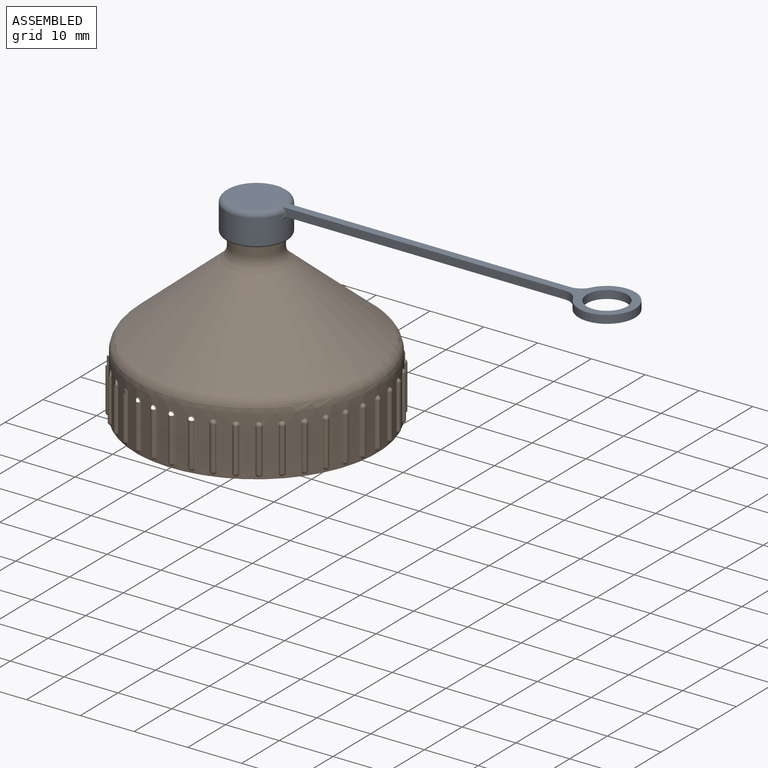
[diagram: assembled view]
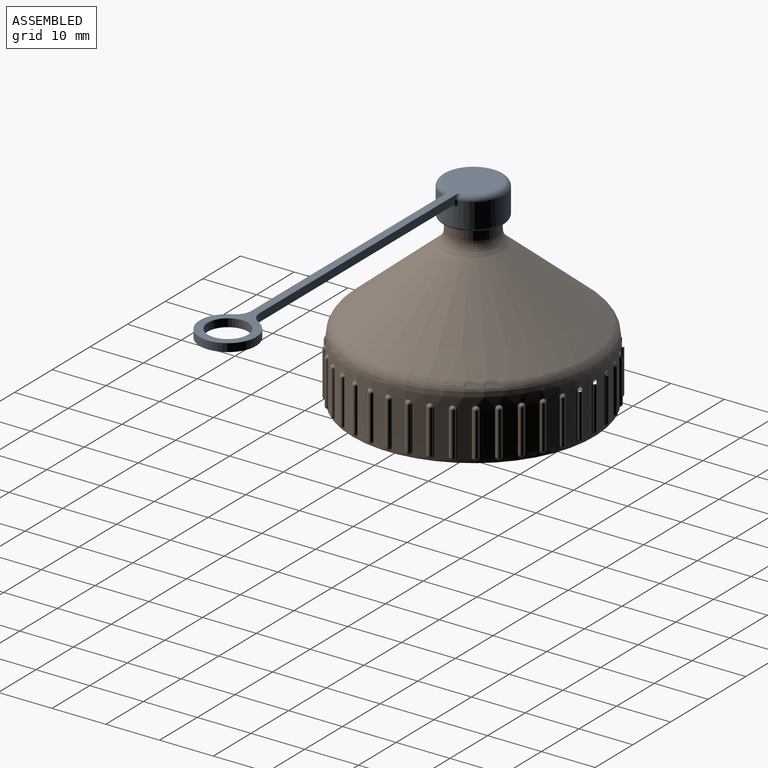
[diagram: assembled view, second angle]
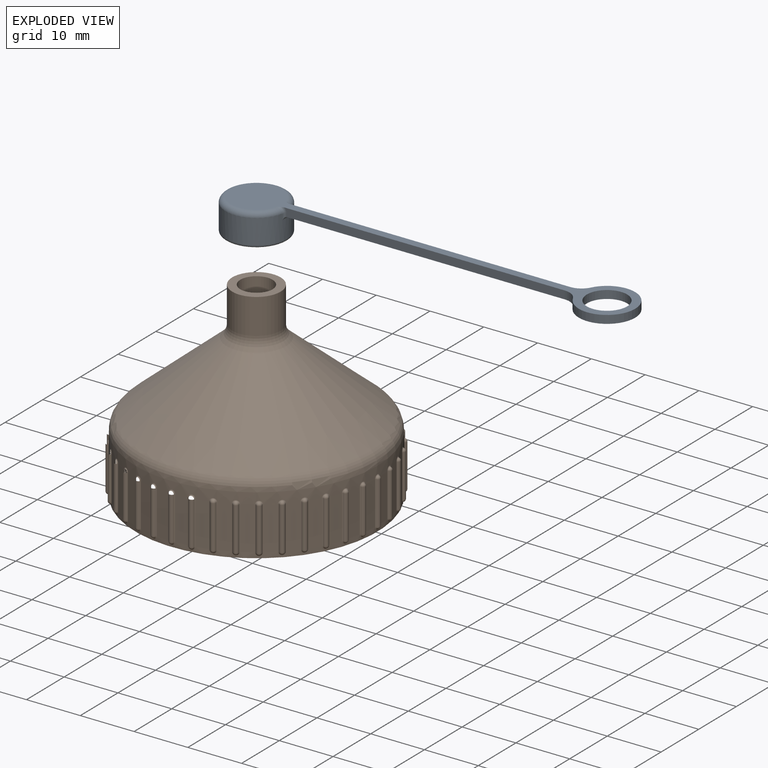
[diagram: exploded view]
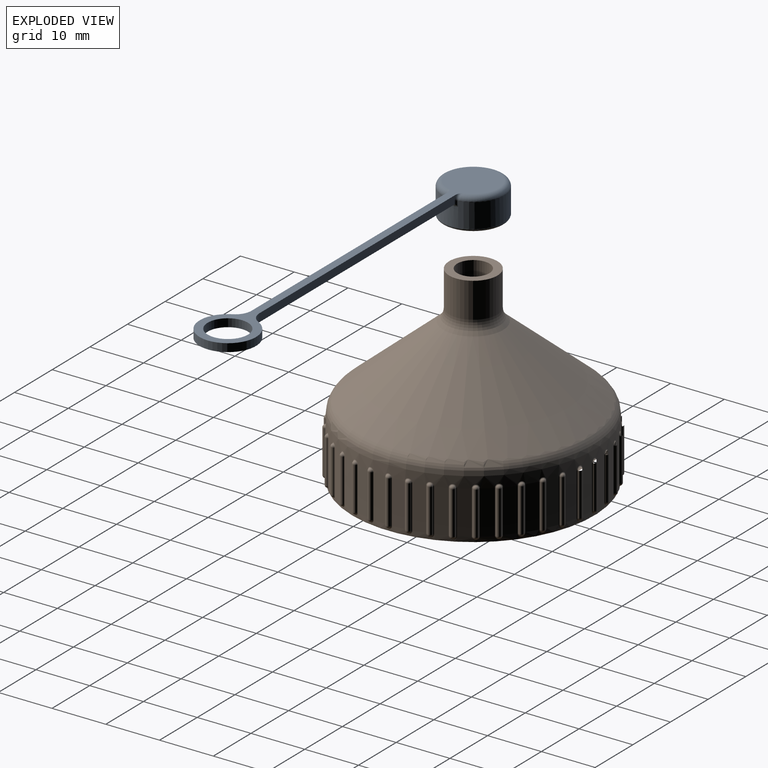
[diagram: exploded view, second angle]
ASSEMBLY  parts=2 mates=2
PART A: 19 faces, bbox 76.9x12.6x6.7 mm
  f0: cylinder r=5.75mm len=11.5mm, axis (0,0,-1), area 160.3mm2, adj f2,f5,f10,f11,f13
  f1: plane 75.38x10.68mm, normal (0,0,1), area 198mm2, adj f2,f7,f8,f9,f12,f15,f16,f17
  f2: torus R=4.75mm, axis (0,0,1), area 49.2mm2, adj f0,f1,f9,f12
  f3: cylinder r=4.75mm len=9.5mm, axis (0,0,-1), area 119.4mm2, adj f5,f14
  f4: plane 8.5x8.5mm, normal (0,0,-1), area 56.7mm2, adj f14
  f5: torus R=5.25mm, axis (0,0,1), area 51.8mm2, adj f0,f3
  f6: plane 64.24x10.5mm, normal (0,0,-1), area 124.5mm2, adj f7,f8,f11,f15,f16,f17,f18
  f7: plane 52.12x1.51mm, normal (0,1,0), area 77.7mm2, adj f1,f6,f11,f12,f13,f18
  f8: plane 52.12x1.51mm, normal (0,-1,0), area 77.7mm2, adj f1,f6,f9,f10,f11,f17
  f9: bspline ~1.77x1.7mm, area 1mm2, adj f1,f2,f8,f10
  f10: cylinder r=0.5mm len=1mm, axis (0,0,-1), area 0.5mm2, adj f0,f8,f9,f11
  f11: torus R=6.25mm, axis (0,0,1), area 1.4mm2, adj f0,f6,f7,f8,f10,f13
  f12: bspline ~1.77x1.7mm, area 1mm2, adj f1,f2,f7,f13
  f13: cylinder r=0.5mm len=1mm, axis (0,0,-1), area 0.5mm2, adj f0,f7,f11,f12
  f14: torus R=4.25mm, axis (0,0,1), area 22.5mm2, adj f3,f4
  f15: cylinder r=3.75mm len=7.5mm, axis (0,0,1), area 35.3mm2, adj f1,f6
  f16: cylinder r=5.25mm len=10.5mm, axis (0,0,1), area 42mm2, adj f1,f6,f17,f18
  f17: cylinder r=3mm len=2.67mm, axis (0,0,1), area 4.9mm2, adj f1,f6,f8,f16
  f18: cylinder r=3mm len=2.67mm, axis (0,0,1), area 4.9mm2, adj f1,f6,f7,f16
PART B: 310 faces, bbox 48.7x49.7x35.7 mm
  f0: cylinder r=22.5mm len=45mm, axis (0,0,-1), area 1081.1mm2, adj f1,f13,f33,f34,f35,f36,f40,f41
  f1: plane 45x45mm, normal (0,0,-1), area 138.2mm2, adj f0,f2,f15,f20
  f2: cylinder r=21.5mm len=43mm, axis (0,0,-1), area 255.6mm2, adj f1,f3,f15,f18,f20,f25
  f3: cylinder r=21.5mm len=43mm, axis (0,0,-1), area 297.3mm2, adj f2,f4,f15,f16,f25
  f4: cylinder r=21.5mm len=43mm, axis (0,0,-1), area 524.8mm2, adj f3,f5,f15,f16,f17,f26,f29
  f5: cone r=21.5mm half-angle=80deg, axis (0,0,-1), area 257.8mm2, adj f4,f6
  f6: cone r=19.53mm half-angle=10deg, axis (0,0,-1), area 189.6mm2, adj f5,f7
  f7: cone r=19.26mm half-angle=50deg, axis (0,0,-1), area 1484.4mm2, adj f6,f8
  f8: cylinder r=3mm len=8mm, axis (0,0,-1), area 150.8mm2, adj f7,f9
  f9: plane 9x9mm, normal (0,0,1), area 35.3mm2, adj f8,f10
  f10: cylinder r=4.5mm len=9mm, axis (0,0,-1), area 185.3mm2, adj f9,f12
  f11: cone r=22.5mm half-angle=50deg, axis (0,0,-1), area 1755.8mm2, adj f12,f13
  f12: torus R=7.5mm, axis (0,0,-1), area 80.1mm2, adj f10,f11
  f13: torus R=19.5mm, axis (0,0,1), area 364.1mm2, adj f0,f11
  f14: plane 0.19x0.19mm, normal (0.5,0.87,0), area 0mm2, adj f18,f21,f24
  f15: bspline ~49.65x43mm, area 582.6mm2, adj f1,f2,f3,f4,f19,f20,f21,f23
  f16: bspline ~49.65x43mm, area 366.7mm2, adj f3,f4,f19,f24,f25,f29
  f17: cylinder r=1.3mm len=1.27mm, axis (0,0,-1), area 0.8mm2, adj f4,f26,f29
  f18: cylinder r=1.3mm len=1.17mm, axis (0,0,-1), area 1mm2, adj f2,f14,f20,f25
  f19: bspline ~40.78x40.78mm, area 149.2mm2, adj f15,f16,f23,f27
  f20: bspline ~1.92x1.43mm, area 0.6mm2, adj f1,f2,f15,f18,f21
  f21: bspline ~1.63x1.51mm, area 0.3mm2, adj f14,f15,f20,f22
  f22: bspline ~0.67x0.54mm, area 0.1mm2, adj f21,f23,f24
  f23: bspline ~0.53x0.39mm, area 0.1mm2, adj f15,f19,f22,f24
  f24: bspline ~1.53x1.11mm, area 0.3mm2, adj f14,f16,f22,f23,f25
  f25: bspline ~1.9x1.22mm, area 0.6mm2, adj f2,f3,f16,f18,f24
  f26: bspline ~2.06x1.84mm, area 0.8mm2, adj f4,f15,f17,f28
  f27: bspline ~0.49x0.36mm, area 0mm2, adj f15,f19,f28,f29
  f28: bspline ~0.8x0.5mm, area 0.1mm2, adj f26,f27,f29
  f29: bspline ~1.92x1.67mm, area 0.9mm2, adj f4,f16,f17,f27,f28
  f30: sphere r=0.5mm, area 3.1mm2, adj f31,f33
  f31: cylinder r=0.5mm len=8mm, axis (0,0,1), area 10.4mm2, adj f30,f32,f34,f35
  f32: sphere r=0.5mm, area 0mm2, adj f31,f36
  f33: bspline ~1.34x0.67mm, area 0.4mm2, adj f0,f30,f34,f35
  f34: cylinder r=0.2mm len=8mm, axis (0,0,-1), area 2mm2, adj f0,f31,f33,f36
  f35: cylinder r=0.2mm len=8mm, axis (0,0,-1), area 2mm2, adj f0,f31,f33,f36
  f36: bspline ~1.34x0.81mm, area 0.4mm2, adj f0,f32,f34,f35
  f37: sphere r=0.5mm, area 3.1mm2, adj f38,f40
  f38: cylinder r=0.5mm len=8mm, axis (0,0,1), area 10.4mm2, adj f37,f39,f41,f42
  f39: sphere r=0.5mm, area 0mm2, adj f38,f43
  f40: bspline ~1.32x0.67mm, area 0.3mm2, adj f0,f37,f41,f42
  f41: cylinder r=0.2mm len=8mm, axis (0,0,-1), area 2mm2, adj f0,f38,f40,f43
  f42: cylinder r=0.2mm len=8mm, axis (0,0,-1), area 2mm2, adj f0,f38,f40,f43
  f43: bspline ~1.32x0.81mm, area 0.4mm2, adj f0,f39,f41,f42
  f44: sphere r=0.5mm, area 3.1mm2, adj f45,f47
  f45: cylinder r=0.5mm len=8mm, axis (0,0,1), area 10.4mm2, adj f44,f46,f48,f49
  f46: sphere r=0.5mm, area 0mm2, adj f45,f50
  f47: bspline ~1.27x0.67mm, area 0.3mm2, adj f0,f44,f48,f49
  f48: cylinder r=0.2mm len=8mm, axis (0,0,-1), area 2mm2, adj f0,f45,f47,f50
  f49: cylinder r=0.2mm len=8mm, axis (0,0,-1), area 2mm2, adj f0,f45,f47,f50
  f50: bspline ~1.27x0.81mm, area 0.4mm2, adj f0,f46,f48,f49
  f51: sphere r=0.5mm, area 3.1mm2, adj f52,f54
  f52: cylinder r=0.5mm len=8mm, axis (0,0,1), area 10.4mm2, adj f51,f53,f55,f56
  f53: sphere r=0.5mm, area 0mm2, adj f52,f57
  f54: bspline ~1.19x0.67mm, area 0.3mm2, adj f0,f51,f55,f56
  f55: cylinder r=0.2mm len=8mm, axis (0,0,-1), area 2mm2, adj f0,f52,f54,f57
  f56: cylinder r=0.2mm len=8mm, axis (0,0,-1), area 2mm2, adj f0,f52,f54,f57
  f57: bspline ~1.19x0.81mm, area 0.4mm2, adj f0,f53,f55,f56
  f58: sphere r=0.5mm, area 3.1mm2, adj f59,f61
  f59: cylinder r=0.5mm len=8mm, axis (0,0,1), area 10.4mm2, adj f58,f60,f62,f63
  f60: sphere r=0.5mm, area 0mm2, adj f59,f64
  f61: bspline ~1.08x0.79mm, area 0.3mm2, adj f0,f58,f62,f63
  f62: cylinder r=0.2mm len=8mm, axis (0,0,-1), area 2mm2, adj f0,f59,f61,f64
  f63: cylinder r=0.2mm len=8mm, axis (0,0,-1), area 2mm2, adj f0,f59,f61,f64
  f64: bspline ~1.08x0.81mm, area 0.4mm2, adj f0,f60,f62,f63
  f65: sphere r=0.5mm, area 3.1mm2, adj f66,f68
  f66: cylinder r=0.5mm len=8mm, axis (0,0,1), area 10.4mm2, adj f65,f67,f69,f70
  f67: sphere r=0.5mm, area 0mm2, adj f66,f71
  f68: bspline ~0.94x0.94mm, area 0.3mm2, adj f0,f65,f69,f70
  f69: cylinder r=0.2mm len=8mm, axis (0,0,-1), area 2mm2, adj f0,f66,f68,f71
  f70: cylinder r=0.2mm len=8mm, axis (0,0,-1), area 2mm2, adj f0,f66,f68,f71
  f71: bspline ~0.95x0.95mm, area 0.4mm2, adj f0,f67,f69,f70
  f72: sphere r=0.5mm, area 3.1mm2, adj f73,f75
  f73: cylinder r=0.5mm len=8mm, axis (0,0,1), area 10.4mm2, adj f72,f74,f76,f77
  f74: sphere r=0.5mm, area 0mm2, adj f73,f78
  f75: bspline ~1.08x0.79mm, area 0.3mm2, adj f0,f72,f76,f77
  f76: cylinder r=0.2mm len=8mm, axis (0,0,-1), area 2mm2, adj f0,f73,f75,f78
  f77: cylinder r=0.2mm len=8mm, axis (0,0,-1), area 2mm2, adj f0,f73,f75,f78
  f78: bspline ~1.08x0.81mm, area 0.4mm2, adj f0,f74,f76,f77
  f79: sphere r=0.5mm, area 3.1mm2, adj f80,f82
  f80: cylinder r=0.5mm len=8mm, axis (0,0,1), area 10.4mm2, adj f79,f81,f83,f84
  f81: sphere r=0.5mm, area 0mm2, adj f80,f85
  f82: bspline ~1.19x0.67mm, area 0.3mm2, adj f0,f79,f83,f84
  f83: cylinder r=0.2mm len=8mm, axis (0,0,-1), area 2mm2, adj f0,f80,f82,f85
  f84: cylinder r=0.2mm len=8mm, axis (0,0,-1), area 2mm2, adj f0,f80,f82,f85
  f85: bspline ~1.19x0.81mm, area 0.4mm2, adj f0,f81,f83,f84
  f86: sphere r=0.5mm, area 3.1mm2, adj f87,f89
  f87: cylinder r=0.5mm len=8mm, axis (0,0,1), area 10.4mm2, adj f86,f88,f90,f91
  f88: sphere r=0.5mm, area 0mm2, adj f87,f92
  f89: bspline ~1.27x0.67mm, area 0.3mm2, adj f0,f86,f90,f91
  f90: cylinder r=0.2mm len=8mm, axis (0,0,-1), area 2mm2, adj f0,f87,f89,f92
  f91: cylinder r=0.2mm len=8mm, axis (0,0,-1), area 2mm2, adj f0,f87,f89,f92
  f92: bspline ~1.27x0.81mm, area 0.4mm2, adj f0,f88,f90,f91
  f93: sphere r=0.5mm, area 3.1mm2, adj f94,f96
  f94: cylinder r=0.5mm len=8mm, axis (0,0,1), area 10.4mm2, adj f93,f95,f97,f98
  f95: sphere r=0.5mm, area 0mm2, adj f94,f99
  f96: bspline ~1.32x0.67mm, area 0.3mm2, adj f0,f93,f97,f98
  f97: cylinder r=0.2mm len=8mm, axis (0,0,-1), area 2mm2, adj f0,f94,f96,f99
  f98: cylinder r=0.2mm len=8mm, axis (0,0,-1), area 2mm2, adj f0,f94,f96,f99
  f99: bspline ~1.32x0.81mm, area 0.4mm2, adj f0,f95,f97,f98
  f100: sphere r=0.5mm, area 3.1mm2, adj f101,f103
  f101: cylinder r=0.5mm len=8mm, axis (0,0,1), area 10.4mm2, adj f100,f102,f104,f105
  f102: sphere r=0.5mm, area 0mm2, adj f101,f106
  f103: bspline ~1.34x0.67mm, area 0.3mm2, adj f0,f100,f104,f105
  f104: cylinder r=0.2mm len=8mm, axis (0,0,-1), area 2mm2, adj f0,f101,f103,f106
  f105: cylinder r=0.2mm len=8mm, axis (0,0,-1), area 2mm2, adj f0,f101,f103,f106
  f106: bspline ~1.34x0.81mm, area 0.4mm2, adj f0,f102,f104,f105
  f107: sphere r=0.5mm, area 3.1mm2, adj f108,f110
  f108: cylinder r=0.5mm len=8mm, axis (0,0,1), area 10.4mm2, adj f107,f109,f111,f112
  f109: sphere r=0.5mm, area 0mm2, adj f108,f113
  f110: bspline ~1.32x0.67mm, area 0.3mm2, adj f0,f107,f111,f112
  f111: cylinder r=0.2mm len=8mm, axis (0,0,-1), area 2mm2, adj f0,f108,f110,f113
  f112: cylinder r=0.2mm len=8mm, axis (0,0,-1), area 2mm2, adj f0,f108,f110,f113
  f113: bspline ~1.32x0.81mm, area 0.4mm2, adj f0,f109,f111,f112
  f114: sphere r=0.5mm, area 0.6mm2, adj f115,f117
  f115: cylinder r=0.5mm len=8mm, axis (0,0,1), area 10.4mm2, adj f114,f116,f118,f119
  f116: sphere r=0.5mm, area 0.6mm2, adj f115,f120
  f117: bspline ~1.27x0.67mm, area 0.3mm2, adj f0,f114,f118,f119
  f118: cylinder r=0.2mm len=8mm, axis (0,0,-1), area 2mm2, adj f0,f115,f117,f120
  f119: cylinder r=0.2mm len=8mm, axis (0,0,-1), area 2mm2, adj f0,f115,f117,f120
  f120: bspline ~1.27x0.81mm, area 0.4mm2, adj f0,f116,f118,f119
  f121: sphere r=0.5mm, area 0.6mm2, adj f122,f124
  f122: cylinder r=0.5mm len=8mm, axis (0,0,1), area 10.4mm2, adj f121,f123,f125,f126
  f123: sphere r=0.5mm, area 0.6mm2, adj f122,f127
  f124: bspline ~1.19x0.67mm, area 0.3mm2, adj f0,f121,f125,f126
  f125: cylinder r=0.2mm len=8mm, axis (0,0,-1), area 2mm2, adj f0,f122,f124,f127
  f126: cylinder r=0.2mm len=8mm, axis (0,0,-1), area 2mm2, adj f0,f122,f124,f127
  f127: bspline ~1.19x0.81mm, area 0.4mm2, adj f0,f123,f125,f126
  f128: sphere r=0.5mm, area 0.6mm2, adj f129,f131
  f129: cylinder r=0.5mm len=8mm, axis (0,0,1), area 10.4mm2, adj f128,f130,f132,f133
  f130: sphere r=0.5mm, area 0.6mm2, adj f129,f134
  f131: bspline ~1.08x0.79mm, area 0.3mm2, adj f0,f128,f132,f133
  f132: cylinder r=0.2mm len=8mm, axis (0,0,-1), area 2mm2, adj f0,f129,f131,f134
  f133: cylinder r=0.2mm len=8mm, axis (0,0,-1), area 2mm2, adj f0,f129,f131,f134
  f134: bspline ~1.08x0.81mm, area 0.4mm2, adj f0,f130,f132,f133
  f135: sphere r=0.5mm, area 0.6mm2, adj f136,f138
  f136: cylinder r=0.5mm len=8mm, axis (0,0,1), area 10.4mm2, adj f135,f137,f139,f140
  f137: sphere r=0.5mm, area 0.6mm2, adj f136,f141
  f138: bspline ~0.94x0.94mm, area 0.3mm2, adj f0,f135,f139,f140
  f139: cylinder r=0.2mm len=8mm, axis (0,0,-1), area 2mm2, adj f0,f136,f138,f141
  f140: cylinder r=0.2mm len=8mm, axis (0,0,-1), area 2mm2, adj f0,f136,f138,f141
  f141: bspline ~0.95x0.95mm, area 0.4mm2, adj f0,f137,f139,f140
  f142: sphere r=0.5mm, area 0.6mm2, adj f143,f145
  f143: cylinder r=0.5mm len=8mm, axis (0,0,1), area 10.4mm2, adj f142,f144,f146,f147
  f144: sphere r=0.5mm, area 0.6mm2, adj f143,f148
  f145: bspline ~1.08x0.79mm, area 0.3mm2, adj f0,f142,f146,f147
  f146: cylinder r=0.2mm len=8mm, axis (0,0,-1), area 2mm2, adj f0,f143,f145,f148
  f147: cylinder r=0.2mm len=8mm, axis (0,0,-1), area 2mm2, adj f0,f143,f145,f148
  f148: bspline ~1.08x0.81mm, area 0.4mm2, adj f0,f144,f146,f147
  f149: sphere r=0.5mm, area 0.6mm2, adj f150,f152
  f150: cylinder r=0.5mm len=8mm, axis (0,0,1), area 10.4mm2, adj f149,f151,f153,f154
  f151: sphere r=0.5mm, area 0.6mm2, adj f150,f155
  f152: bspline ~1.19x0.67mm, area 0.3mm2, adj f0,f149,f153,f154
  f153: cylinder r=0.2mm len=8mm, axis (0,0,-1), area 2mm2, adj f0,f150,f152,f155
  f154: cylinder r=0.2mm len=8mm, axis (0,0,-1), area 2mm2, adj f0,f150,f152,f155
  f155: bspline ~1.19x0.81mm, area 0.4mm2, adj f0,f151,f153,f154
  f156: sphere r=0.5mm, area 0.6mm2, adj f157,f159
  f157: cylinder r=0.5mm len=8mm, axis (0,0,1), area 10.4mm2, adj f156,f158,f160,f161
  f158: sphere r=0.5mm, area 0.6mm2, adj f157,f162
  f159: bspline ~1.27x0.67mm, area 0.3mm2, adj f0,f156,f160,f161
  f160: cylinder r=0.2mm len=8mm, axis (0,0,-1), area 2mm2, adj f0,f157,f159,f162
  f161: cylinder r=0.2mm len=8mm, axis (0,0,-1), area 2mm2, adj f0,f157,f159,f162
  f162: bspline ~1.27x0.81mm, area 0.4mm2, adj f0,f158,f160,f161
  f163: sphere r=0.5mm, area 0.6mm2, adj f164,f166
  f164: cylinder r=0.5mm len=8mm, axis (0,0,1), area 10.4mm2, adj f163,f165,f167,f168
  f165: sphere r=0.5mm, area 0.6mm2, adj f164,f169
  f166: bspline ~1.32x0.67mm, area 0.3mm2, adj f0,f163,f167,f168
  f167: cylinder r=0.2mm len=8mm, axis (0,0,-1), area 2mm2, adj f0,f164,f166,f169
  f168: cylinder r=0.2mm len=8mm, axis (0,0,-1), area 2mm2, adj f0,f164,f166,f169
  f169: bspline ~1.32x0.81mm, area 0.4mm2, adj f0,f165,f167,f168
  f170: sphere r=0.5mm, area 0.6mm2, adj f171,f173
  f171: cylinder r=0.5mm len=8mm, axis (0,0,1), area 10.4mm2, adj f170,f172,f174,f175
  f172: sphere r=0.5mm, area 0.6mm2, adj f171,f176
  f173: bspline ~1.34x0.67mm, area 0.3mm2, adj f0,f170,f174,f175
  f174: cylinder r=0.2mm len=8mm, axis (0,0,-1), area 2mm2, adj f0,f171,f173,f176
  f175: cylinder r=0.2mm len=8mm, axis (0,0,-1), area 2mm2, adj f0,f171,f173,f176
  f176: bspline ~1.34x0.81mm, area 0.4mm2, adj f0,f172,f174,f175
  f177: sphere r=0.5mm, area 0.6mm2, adj f178,f180
  f178: cylinder r=0.5mm len=8mm, axis (0,0,1), area 10.4mm2, adj f177,f179,f181,f182
  f179: sphere r=0.5mm, area 0.6mm2, adj f178,f183
  f180: bspline ~1.32x0.67mm, area 0.3mm2, adj f0,f177,f181,f182
  f181: cylinder r=0.2mm len=8mm, axis (0,0,-1), area 2mm2, adj f0,f178,f180,f183
  f182: cylinder r=0.2mm len=8mm, axis (0,0,-1), area 2mm2, adj f0,f178,f180,f183
  f183: bspline ~1.32x0.81mm, area 0.4mm2, adj f0,f179,f181,f182
  f184: sphere r=0.5mm, area 0.6mm2, adj f185,f187
  f185: cylinder r=0.5mm len=8mm, axis (0,0,1), area 10.4mm2, adj f184,f186,f188,f189
  f186: sphere r=0.5mm, area 0.6mm2, adj f185,f190
  f187: bspline ~1.27x0.67mm, area 0.3mm2, adj f0,f184,f188,f189
  f188: cylinder r=0.2mm len=8mm, axis (0,0,-1), area 2mm2, adj f0,f185,f187,f190
  f189: cylinder r=0.2mm len=8mm, axis (0,0,-1), area 2mm2, adj f0,f185,f187,f190
  f190: bspline ~1.27x0.81mm, area 0.4mm2, adj f0,f186,f188,f189
  f191: sphere r=0.5mm, area 0.6mm2, adj f192,f194
  f192: cylinder r=0.5mm len=8mm, axis (0,0,1), area 10.4mm2, adj f191,f193,f195,f196
  f193: sphere r=0.5mm, area 0.6mm2, adj f192,f197
  f194: bspline ~1.19x0.67mm, area 0.3mm2, adj f0,f191,f195,f196
  f195: cylinder r=0.2mm len=8mm, axis (0,0,-1), area 2mm2, adj f0,f192,f194,f197
  f196: cylinder r=0.2mm len=8mm, axis (0,0,-1), area 2mm2, adj f0,f192,f194,f197
  f197: bspline ~1.19x0.81mm, area 0.4mm2, adj f0,f193,f195,f196
  f198: sphere r=0.5mm, area 0.6mm2, adj f199,f201
  f199: cylinder r=0.5mm len=8mm, axis (0,0,1), area 10.4mm2, adj f198,f200,f202,f203
  f200: sphere r=0.5mm, area 0.6mm2, adj f199,f204
  f201: bspline ~1.08x0.79mm, area 0.3mm2, adj f0,f198,f202,f203
  f202: cylinder r=0.2mm len=8mm, axis (0,0,-1), area 2mm2, adj f0,f199,f201,f204
  f203: cylinder r=0.2mm len=8mm, axis (0,0,-1), area 2mm2, adj f0,f199,f201,f204
  f204: bspline ~1.08x0.81mm, area 0.4mm2, adj f0,f200,f202,f203
  f205: sphere r=0.5mm, area 0.6mm2, adj f206,f208
  f206: cylinder r=0.5mm len=8mm, axis (0,0,1), area 10.4mm2, adj f205,f207,f209,f210
  f207: sphere r=0.5mm, area 0.6mm2, adj f206,f211
  f208: bspline ~0.94x0.94mm, area 0.3mm2, adj f0,f205,f209,f210
  f209: cylinder r=0.2mm len=8mm, axis (0,0,-1), area 2mm2, adj f0,f206,f208,f211
  f210: cylinder r=0.2mm len=8mm, axis (0,0,-1), area 2mm2, adj f0,f206,f208,f211
  f211: bspline ~0.95x0.95mm, area 0.4mm2, adj f0,f207,f209,f210
  f212: sphere r=0.5mm, area 0.6mm2, adj f213,f215
  f213: cylinder r=0.5mm len=8mm, axis (0,0,1), area 10.4mm2, adj f212,f214,f216,f217
  f214: sphere r=0.5mm, area 0.6mm2, adj f213,f218
  f215: bspline ~1.08x0.79mm, area 0.3mm2, adj f0,f212,f216,f217
  f216: cylinder r=0.2mm len=8mm, axis (0,0,-1), area 2mm2, adj f0,f213,f215,f218
  f217: cylinder r=0.2mm len=8mm, axis (0,0,-1), area 2mm2, adj f0,f213,f215,f218
  f218: bspline ~1.08x0.81mm, area 0.4mm2, adj f0,f214,f216,f217
  f219: sphere r=0.5mm, area 0.6mm2, adj f220,f222
  f220: cylinder r=0.5mm len=8mm, axis (0,0,1), area 10.4mm2, adj f219,f221,f223,f224
  f221: sphere r=0.5mm, area 0.6mm2, adj f220,f225
  f222: bspline ~1.19x0.67mm, area 0.3mm2, adj f0,f219,f223,f224
  f223: cylinder r=0.2mm len=8mm, axis (0,0,-1), area 2mm2, adj f0,f220,f222,f225
  f224: cylinder r=0.2mm len=8mm, axis (0,0,-1), area 2mm2, adj f0,f220,f222,f225
  f225: bspline ~1.19x0.81mm, area 0.4mm2, adj f0,f221,f223,f224
  f226: sphere r=0.5mm, area 0.6mm2, adj f227,f229
  f227: cylinder r=0.5mm len=8mm, axis (0,0,1), area 10.4mm2, adj f226,f228,f230,f231
  f228: sphere r=0.5mm, area 0.6mm2, adj f227,f232
  f229: bspline ~1.27x0.67mm, area 0.3mm2, adj f0,f226,f230,f231
  f230: cylinder r=0.2mm len=8mm, axis (0,0,-1), area 2mm2, adj f0,f227,f229,f232
  f231: cylinder r=0.2mm len=8mm, axis (0,0,-1), area 2mm2, adj f0,f227,f229,f232
  f232: bspline ~1.27x0.81mm, area 0.4mm2, adj f0,f228,f230,f231
  f233: sphere r=0.5mm, area 3.1mm2, adj f234,f236
  f234: cylinder r=0.5mm len=8mm, axis (0,0,1), area 10.4mm2, adj f233,f235,f237,f238
  f235: sphere r=0.5mm, area 0mm2, adj f234,f239
  f236: bspline ~1.32x0.67mm, area 0.3mm2, adj f0,f233,f237,f238
  f237: cylinder r=0.2mm len=8mm, axis (0,0,-1), area 2mm2, adj f0,f234,f236,f239
  f238: cylinder r=0.2mm len=8mm, axis (0,0,-1), area 2mm2, adj f0,f234,f236,f239
  f239: bspline ~1.32x0.81mm, area 0.4mm2, adj f0,f235,f237,f238
  f240: sphere r=0.5mm, area 3.1mm2, adj f241,f243
  f241: cylinder r=0.5mm len=8mm, axis (0,0,1), area 10.4mm2, adj f240,f242,f244,f245
  f242: sphere r=0.5mm, area 0mm2, adj f241,f246
  f243: bspline ~1.34x0.67mm, area 0.3mm2, adj f0,f240,f244,f245
  f244: cylinder r=0.2mm len=8mm, axis (0,0,-1), area 2mm2, adj f0,f241,f243,f246
  f245: cylinder r=0.2mm len=8mm, axis (0,0,-1), area 2mm2, adj f0,f241,f243,f246
  f246: bspline ~1.34x0.81mm, area 0.4mm2, adj f0,f242,f244,f245
  f247: sphere r=0.5mm, area 3.1mm2, adj f248,f250
  f248: cylinder r=0.5mm len=8mm, axis (0,0,1), area 10.4mm2, adj f247,f249,f251,f252
  f249: sphere r=0.5mm, area 0mm2, adj f248,f253
  f250: bspline ~1.32x0.67mm, area 0.3mm2, adj f0,f247,f251,f252
  f251: cylinder r=0.2mm len=8mm, axis (0,0,-1), area 2mm2, adj f0,f248,f250,f253
  f252: cylinder r=0.2mm len=8mm, axis (0,0,-1), area 2mm2, adj f0,f248,f250,f253
  f253: bspline ~1.32x0.81mm, area 0.4mm2, adj f0,f249,f251,f252
  f254: sphere r=0.5mm, area 3.1mm2, adj f255,f257
  f255: cylinder r=0.5mm len=8mm, axis (0,0,1), area 10.4mm2, adj f254,f256,f258,f259
  f256: sphere r=0.5mm, area 0mm2, adj f255,f260
  f257: bspline ~1.27x0.67mm, area 0.3mm2, adj f0,f254,f258,f259
  f258: cylinder r=0.2mm len=8mm, axis (0,0,-1), area 2mm2, adj f0,f255,f257,f260
  f259: cylinder r=0.2mm len=8mm, axis (0,0,-1), area 2mm2, adj f0,f255,f257,f260
  f260: bspline ~1.27x0.81mm, area 0.4mm2, adj f0,f256,f258,f259
  f261: sphere r=0.5mm, area 3.1mm2, adj f262,f264
  f262: cylinder r=0.5mm len=8mm, axis (0,0,1), area 10.4mm2, adj f261,f263,f265,f266
  f263: sphere r=0.5mm, area 0mm2, adj f262,f267
  f264: bspline ~1.19x0.67mm, area 0.3mm2, adj f0,f261,f265,f266
  f265: cylinder r=0.2mm len=8mm, axis (0,0,-1), area 2mm2, adj f0,f262,f264,f267
  f266: cylinder r=0.2mm len=8mm, axis (0,0,-1), area 2mm2, adj f0,f262,f264,f267
  f267: bspline ~1.19x0.81mm, area 0.4mm2, adj f0,f263,f265,f266
  f268: sphere r=0.5mm, area 3.1mm2, adj f269,f271
  f269: cylinder r=0.5mm len=8mm, axis (0,0,1), area 10.4mm2, adj f268,f270,f272,f273
  f270: sphere r=0.5mm, area 0mm2, adj f269,f274
  f271: bspline ~1.08x0.79mm, area 0.3mm2, adj f0,f268,f272,f273
  f272: cylinder r=0.2mm len=8mm, axis (0,0,-1), area 2mm2, adj f0,f269,f271,f274
  f273: cylinder r=0.2mm len=8mm, axis (0,0,-1), area 2mm2, adj f0,f269,f271,f274
  f274: bspline ~1.08x0.81mm, area 0.4mm2, adj f0,f270,f272,f273
  f275: sphere r=0.5mm, area 3.1mm2, adj f276,f278
  f276: cylinder r=0.5mm len=8mm, axis (0,0,1), area 10.4mm2, adj f275,f277,f279,f280
  f277: sphere r=0.5mm, area 0mm2, adj f276,f281
  f278: bspline ~0.94x0.94mm, area 0.3mm2, adj f0,f275,f279,f280
  f279: cylinder r=0.2mm len=8mm, axis (0,0,-1), area 2mm2, adj f0,f276,f278,f281
  f280: cylinder r=0.2mm len=8mm, axis (0,0,-1), area 2mm2, adj f0,f276,f278,f281
  f281: bspline ~0.95x0.95mm, area 0.4mm2, adj f0,f277,f279,f280
  f282: sphere r=0.5mm, area 3.1mm2, adj f283,f285
  f283: cylinder r=0.5mm len=8mm, axis (0,0,1), area 10.4mm2, adj f282,f284,f286,f287
  f284: sphere r=0.5mm, area 0mm2, adj f283,f288
  f285: bspline ~1.08x0.79mm, area 0.3mm2, adj f0,f282,f286,f287
  f286: cylinder r=0.2mm len=8mm, axis (0,0,-1), area 2mm2, adj f0,f283,f285,f288
  f287: cylinder r=0.2mm len=8mm, axis (0,0,-1), area 2mm2, adj f0,f283,f285,f288
  f288: bspline ~1.08x0.81mm, area 0.4mm2, adj f0,f284,f286,f287
  f289: sphere r=0.5mm, area 3.1mm2, adj f290,f292
  f290: cylinder r=0.5mm len=8mm, axis (0,0,1), area 10.4mm2, adj f289,f291,f293,f294
  f291: sphere r=0.5mm, area 0mm2, adj f290,f295
  f292: bspline ~1.19x0.67mm, area 0.3mm2, adj f0,f289,f293,f294
  f293: cylinder r=0.2mm len=8mm, axis (0,0,-1), area 2mm2, adj f0,f290,f292,f295
  f294: cylinder r=0.2mm len=8mm, axis (0,0,-1), area 2mm2, adj f0,f290,f292,f295
  f295: bspline ~1.19x0.81mm, area 0.4mm2, adj f0,f291,f293,f294
  f296: sphere r=0.5mm, area 3.1mm2, adj f297,f299
  f297: cylinder r=0.5mm len=8mm, axis (0,0,1), area 10.4mm2, adj f296,f298,f300,f301
  f298: sphere r=0.5mm, area 0mm2, adj f297,f302
  f299: bspline ~1.27x0.67mm, area 0.3mm2, adj f0,f296,f300,f301
  f300: cylinder r=0.2mm len=8mm, axis (0,0,-1), area 2mm2, adj f0,f297,f299,f302
  f301: cylinder r=0.2mm len=8mm, axis (0,0,-1), area 2mm2, adj f0,f297,f299,f302
  f302: bspline ~1.27x0.81mm, area 0.4mm2, adj f0,f298,f300,f301
  f303: sphere r=0.5mm, area 3.1mm2, adj f304,f306
  f304: cylinder r=0.5mm len=8mm, axis (0,0,1), area 10.4mm2, adj f303,f305,f307,f308
  f305: sphere r=0.5mm, area 0mm2, adj f304,f309
  f306: bspline ~1.32x0.67mm, area 0.3mm2, adj f0,f303,f307,f308
  f307: cylinder r=0.2mm len=8mm, axis (0,0,-1), area 2mm2, adj f0,f304,f306,f309
  f308: cylinder r=0.2mm len=8mm, axis (0,0,-1), area 2mm2, adj f0,f304,f306,f309
  f309: bspline ~1.32x0.81mm, area 0.4mm2, adj f0,f305,f307,f308
PLACE A t=(-1.4,7.35,26.31)mm
PLACE B t=(-1.4,7.35,-4.72)mm fixed
MATE planar B.f0 <-> A.f0  axis (0,0,1) through (-1.4,7.35,30.81)mm
MATE slider A.f0 <-> B.f0  axis (0,0,-1) through (-1.4,7.35,29.06)mm
